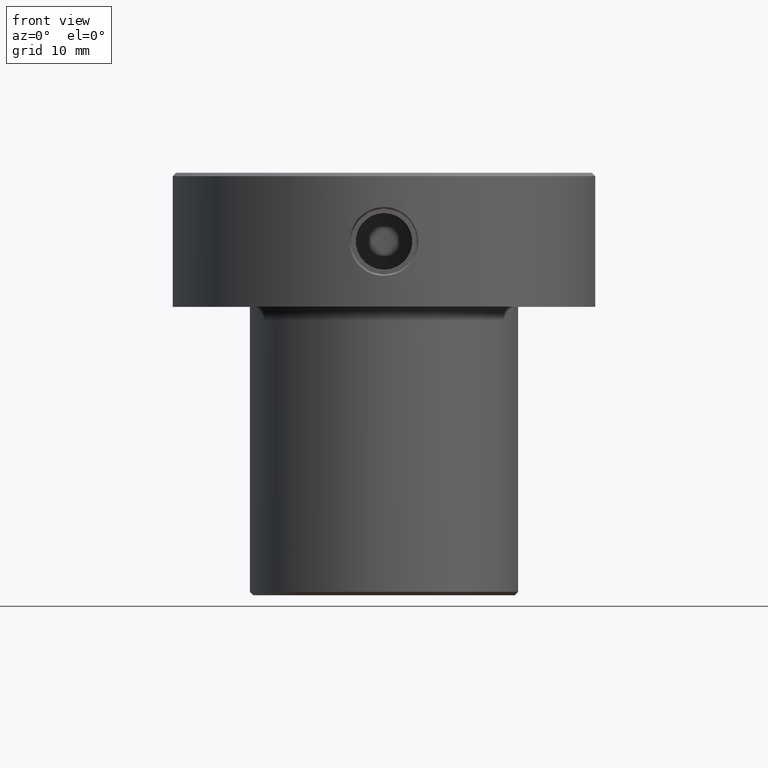
[diagram: clean part render]
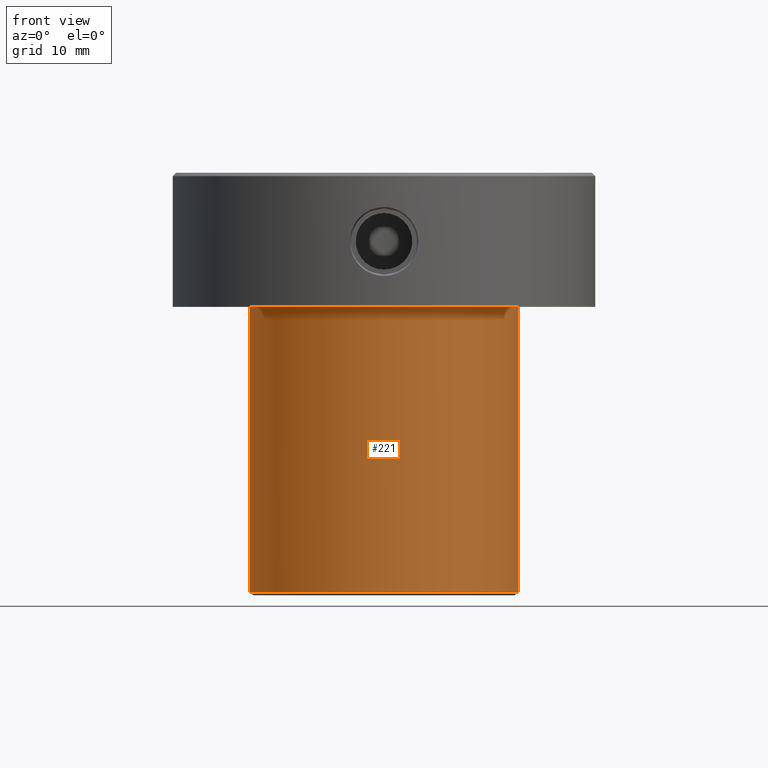
[diagram: same view with one face highlighted and labeled with its STEP entity id]
A machine part, front view. The second image highlights one B-rep face of the part: STEP entity #221.
In plain terms, the highlighted cylindrical surface (partial cylindrical patch) has radius 20 mm, axis along (-0, -0, 1).
Its self-contained STEP definition (entity closure, byte-faithful):
#42 = DIRECTION ( 'NONE',  ( -0.000000000000000000, -0.000000000000000000, 1.000000000000000000 ) ) ;
#50 = AXIS2_PLACEMENT_3D ( 'NONE', #720, #528, #333 ) ;
#117 = FACE_OUTER_BOUND ( 'NONE', #898, .T. ) ;
#171 = DIRECTION ( 'NONE',  ( 1.000000000000000000, 0.000000000000000000, 0.000000000000000000 ) ) ;
#179 = ORIENTED_EDGE ( 'NONE', *, *, #899, .F. ) ;
#221 = ADVANCED_FACE ( 'NONE', ( #117 ), #713, .T. ) ;
#249 = VERTEX_POINT ( 'NONE', #1180 ) ;
#254 = EDGE_CURVE ( 'NONE', #1195, #906, #873, .T. ) ;
#286 = CARTESIAN_POINT ( 'NONE',  ( 20.00000000000000000, 0.000000000000000000, 0.000000000000000000 ) ) ;
#292 = CARTESIAN_POINT ( 'NONE',  ( -20.00000000000000000, 2.449293598294706513E-15, 0.000000000000000000 ) ) ;
#308 = CARTESIAN_POINT ( 'NONE',  ( -20.00000000000000000, 2.449293598294706513E-15, -20.00000000000000000 ) ) ;
#333 = DIRECTION ( 'NONE',  ( 1.000000000000000000, 0.000000000000000000, 0.000000000000000000 ) ) ;
#354 = CARTESIAN_POINT ( 'NONE',  ( 20.00000000000000000, 0.000000000000000000, -62.49999999999995737 ) ) ;
#429 = ORIENTED_EDGE ( 'NONE', *, *, #664, .T. ) ;
#441 = VECTOR ( 'NONE', #42, 1000.000000000000000 ) ;
#519 = CARTESIAN_POINT ( 'NONE',  ( 20.00000000000000000, 0.000000000000000000, -20.00000000000000000 ) ) ;
#528 = DIRECTION ( 'NONE',  ( -0.000000000000000000, -0.000000000000000000, 1.000000000000000000 ) ) ;
#619 = CIRCLE ( 'NONE', #654, 20.00000000000000000 ) ;
#639 = ORIENTED_EDGE ( 'NONE', *, *, #688, .F. ) ;
#651 = DIRECTION ( 'NONE',  ( -0.000000000000000000, -0.000000000000000000, 1.000000000000000000 ) ) ;
#654 = AXIS2_PLACEMENT_3D ( 'NONE', #1128, #747, #171 ) ;
#664 = EDGE_CURVE ( 'NONE', #249, #1195, #1257, .T. ) ;
#688 = EDGE_CURVE ( 'NONE', #993, #906, #619, .T. ) ;
#707 = CARTESIAN_POINT ( 'NONE',  ( 0.000000000000000000, 0.000000000000000000, -62.49999999999995737 ) ) ;
#713 = CYLINDRICAL_SURFACE ( 'NONE', #50, 20.00000000000000000 ) ;
#720 = CARTESIAN_POINT ( 'NONE',  ( 0.000000000000000000, 0.000000000000000000, 0.000000000000000000 ) ) ;
#747 = DIRECTION ( 'NONE',  ( -0.000000000000000000, -0.000000000000000000, 1.000000000000000000 ) ) ;
#825 = ORIENTED_EDGE ( 'NONE', *, *, #254, .T. ) ;
#860 = VECTOR ( 'NONE', #1200, 1000.000000000000000 ) ;
#873 = LINE ( 'NONE', #286, #860 ) ;
#898 = EDGE_LOOP ( 'NONE', ( #179, #429, #825, #639 ) ) ;
#899 = EDGE_CURVE ( 'NONE', #249, #993, #992, .T. ) ;
#906 = VERTEX_POINT ( 'NONE', #519 ) ;
#982 = AXIS2_PLACEMENT_3D ( 'NONE', #707, #651, #1235 ) ;
#992 = LINE ( 'NONE', #292, #441 ) ;
#993 = VERTEX_POINT ( 'NONE', #308 ) ;
#1128 = CARTESIAN_POINT ( 'NONE',  ( 0.000000000000000000, 0.000000000000000000, -20.00000000000000000 ) ) ;
#1180 = CARTESIAN_POINT ( 'NONE',  ( -20.00000000000000000, 2.449293598294706513E-15, -62.49999999999995737 ) ) ;
#1195 = VERTEX_POINT ( 'NONE', #354 ) ;
#1200 = DIRECTION ( 'NONE',  ( -0.000000000000000000, -0.000000000000000000, 1.000000000000000000 ) ) ;
#1235 = DIRECTION ( 'NONE',  ( -1.000000000000000000, 0.000000000000000000, 0.000000000000000000 ) ) ;
#1257 = CIRCLE ( 'NONE', #982, 20.00000000000000000 ) ;